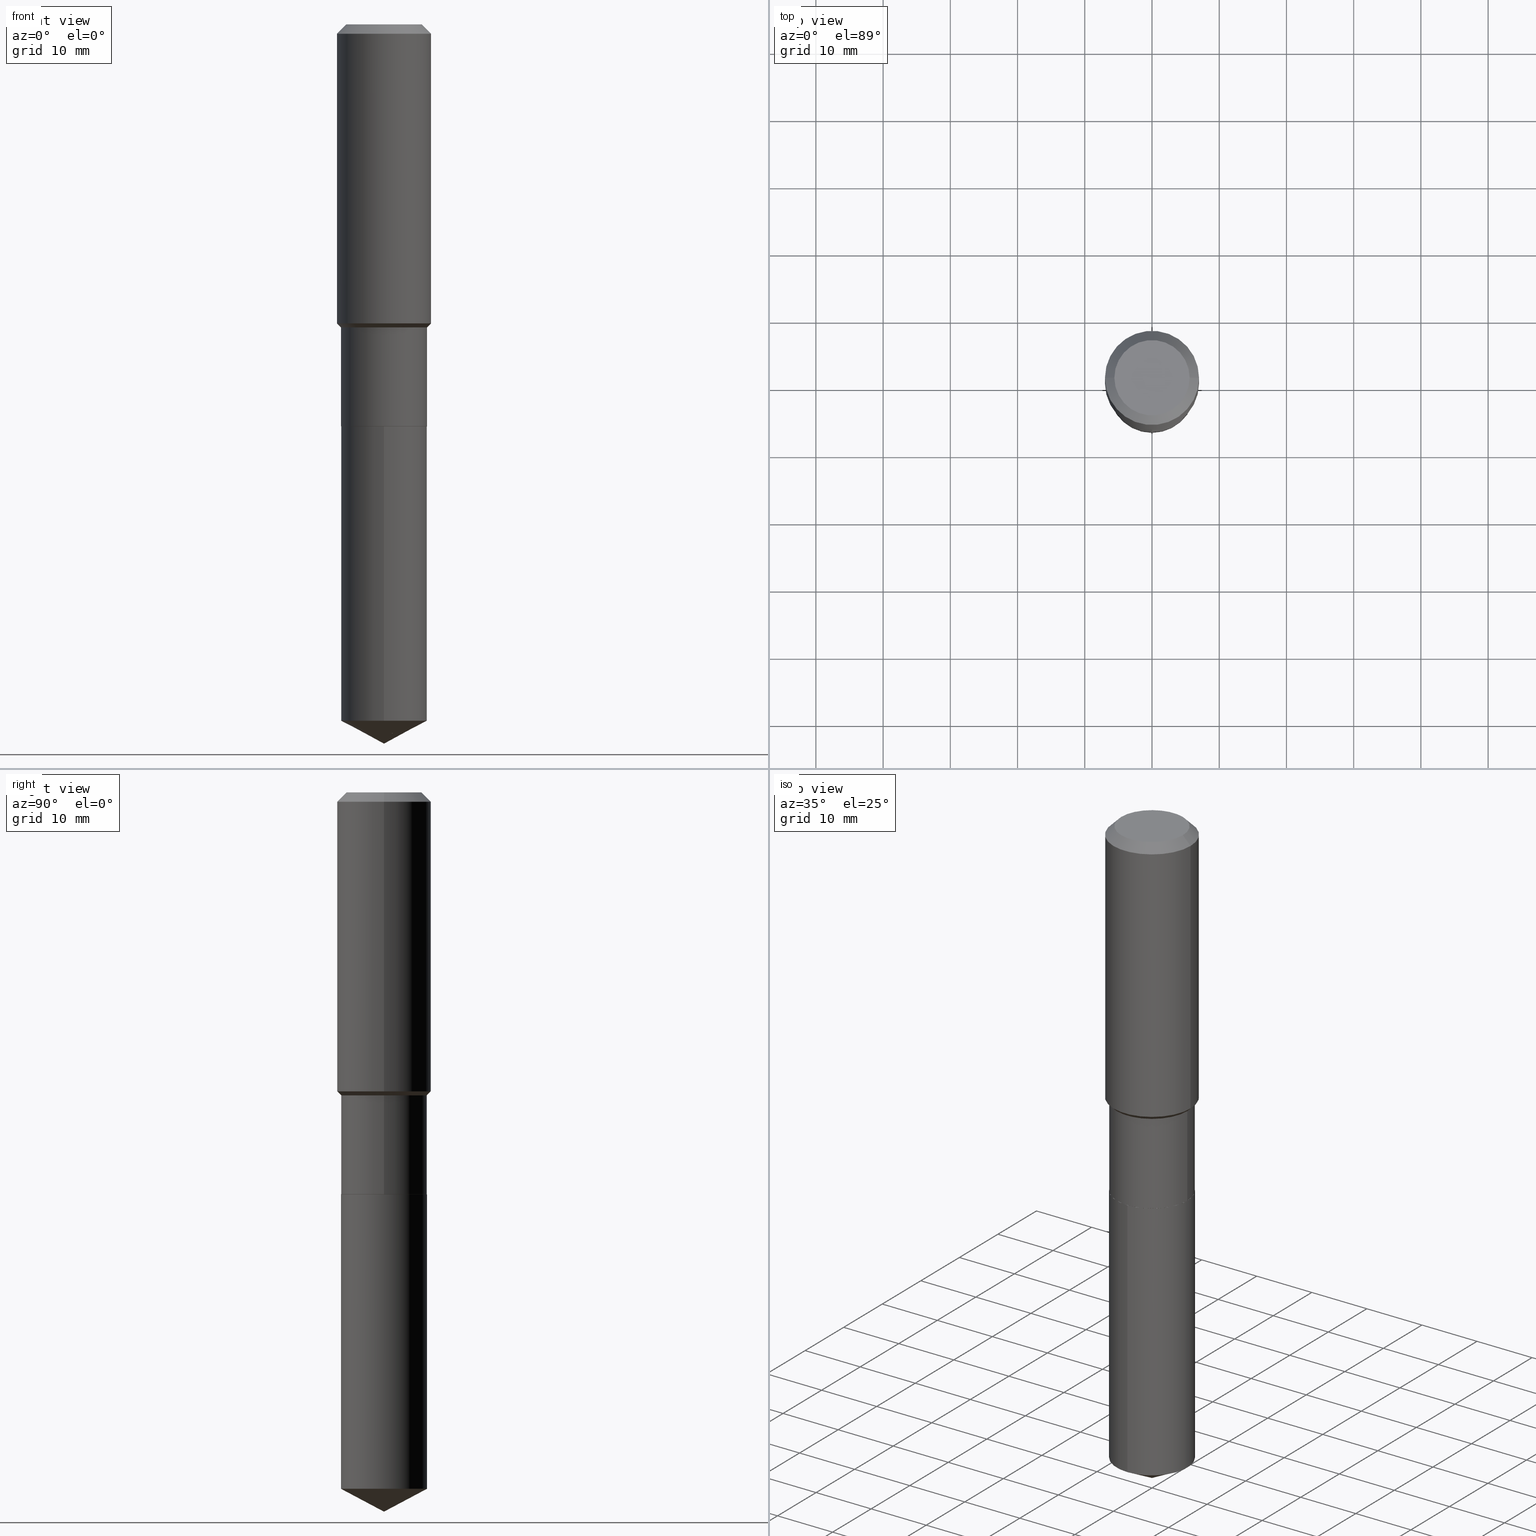
[diagram: canonical four-view strip — front | top / right | iso, engineering-drawing reading convention]
A machine part, canonical four-view strip (front | top / right | iso — engineering-drawing reading convention). The complete STEP part file that produces these views, byte-faithful:
ISO-10303-21;
HEADER;
FILE_DESCRIPTION (( 'STEP AP203' ),
    '1' );
FILE_NAME ('67692.STEP',
    '2024-04-25T09:34:52',
    ( '' ),
    ( '' ),
    'SwSTEP 2.0',
    'SolidWorks 2023',
    '' );
FILE_SCHEMA (( 'CONFIG_CONTROL_DESIGN' ));
ENDSEC;

DATA;
#1 = CARTESIAN_POINT ( 'NONE',  ( 0.000000000000000000, 0.000000000000000000, 0.000000000000000000 ) ) ;
#2 = EDGE_LOOP ( 'NONE', ( #100, #408, #293 ) ) ;
#3 = AXIS2_PLACEMENT_3D ( 'NONE', #363, #351, #164 ) ;
#4 = PERSON_AND_ORGANIZATION ( #196, #98 ) ;
#5 = EDGE_CURVE ( 'NONE', #39, #18, #113, .T. ) ;
#6 = APPLICATION_PROTOCOL_DEFINITION ( 'international standard', 'config_control_design', 1994, #73 ) ;
#7 = DIRECTION ( 'NONE',  ( 1.000000000000000000, -6.982962677686266711E-15, 4.876132675269083677E-29 ) ) ;
#8 = DIRECTION ( 'NONE',  ( -2.445468806185136597E-29, 3.491481338843145583E-15, 1.000000000000000000 ) ) ;
#9 = VECTOR ( 'NONE', #23, 39.37007874015748143 ) ;
#10 = DATE_AND_TIME ( #455, #419 ) ;
#11 = DIRECTION ( 'NONE',  ( -6.982962677686265922E-15, -1.000000000000000000, 4.337127197720600657E-15 ) ) ;
#12 = CIRCLE ( 'NONE', #223, 0.2519499999999999518 ) ;
#13 = CARTESIAN_POINT ( 'NONE',  ( -0.2519499999999999518, -4.406468657431244300E-15, -1.774800000000000155 ) ) ;
#14 = ORIENTED_EDGE ( 'NONE', *, *, #274, .T. ) ;
#15 = ORIENTED_EDGE ( 'NONE', *, *, #252, .T. ) ;
#16 = ADVANCED_FACE ( 'NONE', ( #112 ), #178, .F. ) ;
#17 = DIRECTION ( 'NONE',  ( -2.445468806185136597E-29, 3.491481338843145583E-15, 1.000000000000000000 ) ) ;
#18 = VERTEX_POINT ( 'NONE', #71 ) ;
#19 = DIRECTION ( 'NONE',  ( -6.982962677686265922E-15, -1.000000000000000000, 3.252845398290450098E-15 ) ) ;
#20 = FACE_OUTER_BOUND ( 'NONE', #202, .T. ) ;
#21 = ORIENTED_EDGE ( 'NONE', *, *, #323, .T. ) ;
#22 = AXIS2_PLACEMENT_3D ( 'NONE', #441, #180, #185 ) ;
#23 = DIRECTION ( 'NONE',  ( -2.445468806185136877E-29, 3.491481338843145188E-15, 1.000000000000000000 ) ) ;
#24 = VERTEX_POINT ( 'NONE', #347 ) ;
#25 = EDGE_CURVE ( 'NONE', #303, #141, #380, .T. ) ;
#26 = FACE_OUTER_BOUND ( 'NONE', #387, .T. ) ;
#27 = APPROVAL_DATE_TIME ( #233, #354 ) ;
#28 = DIRECTION ( 'NONE',  ( -6.982962677686265922E-15, -1.000000000000000000, 4.337127197720600657E-15 ) ) ;
#29 = CARTESIAN_POINT ( 'NONE',  ( 1.030198585258308093E-28, -1.470794465170432183E-14, -4.212600000000000122 ) ) ;
#30 = CARTESIAN_POINT ( 'NONE',  ( 4.282382699951101703E-29, -6.114107546515174524E-15, -1.751149999999999984 ) ) ;
#31 = ADVANCED_FACE ( 'NONE', ( #190 ), #237, .T. ) ;
#32 = AXIS2_PLACEMENT_3D ( 'NONE', #99, #244, #393 ) ;
#33 = PERSON_AND_ORGANIZATION_ROLE ( 'creator' ) ;
#34 = ORIENTED_EDGE ( 'NONE', *, *, #323, .F. ) ;
#35 = DIRECTION ( 'NONE',  ( -6.982962677686265922E-15, -1.000000000000000000, 3.252845398290450098E-15 ) ) ;
#36 = ORIENTED_EDGE ( 'NONE', *, *, #5, .F. ) ;
#37 = VECTOR ( 'NONE', #308, 39.37007874015748143 ) ;
#38 = AXIS2_PLACEMENT_3D ( 'NONE', #81, #227, #377 ) ;
#39 = VERTEX_POINT ( 'NONE', #91 ) ;
#40 = PERSON_AND_ORGANIZATION ( #196, #98 ) ;
#41 = ADVANCED_FACE ( 'NONE', ( #26 ), #435, .T. ) ;
#42 = DIRECTION ( 'NONE',  ( 1.000000000000000000, -6.982962677686265922E-15, 0.000000000000000000 ) ) ;
#43 = APPROVAL_ROLE ( '' ) ;
#44 = DIRECTION ( 'NONE',  ( -2.445468806185136597E-29, 3.491481338843145583E-15, 1.000000000000000000 ) ) ;
#45 = EDGE_CURVE ( 'NONE', #472, #303, #278, .T. ) ;
#46 = LOCAL_TIME ( 5, 34, 52.00000000000000000, #110 ) ;
#47 = DIRECTION ( 'NONE',  ( -2.445089197261036539E-29, 3.492024960428454996E-15, 1.000000000000000000 ) ) ;
#48 = FACE_OUTER_BOUND ( 'NONE', #127, .T. ) ;
#49 = ORIENTED_EDGE ( 'NONE', *, *, #334, .T. ) ;
#50 = DIRECTION ( 'NONE',  ( -1.000000000000000000, 6.982962677686269077E-15, 0.000000000000000000 ) ) ;
#51 = AXIS2_PLACEMENT_3D ( 'NONE', #231, #89, #116 ) ;
#52 = DIRECTION ( 'NONE',  ( -2.445468806185136597E-29, 3.491481338843145583E-15, 1.000000000000000000 ) ) ;
#53 = EDGE_LOOP ( 'NONE', ( #109, #462, #228, #361 ) ) ;
#54 = CONICAL_SURFACE ( 'NONE', #410, 0.2519499999999999518, 0.7853981633974511656 ) ;
#55 = ADVANCED_FACE ( 'NONE', ( #350 ), #107, .F. ) ;
#56 = DIRECTION ( 'NONE',  ( -2.445468806185136877E-29, 3.491481338843145188E-15, 1.000000000000000000 ) ) ;
#57 = CARTESIAN_POINT ( 'NONE',  ( 1.790212422747629662E-15, 0.2519499999999917361, -2.354300000000001170 ) ) ;
#58 = ORIENTED_EDGE ( 'NONE', *, *, #313, .T. ) ;
#59 = VERTEX_POINT ( 'NONE', #438 ) ;
#60 = LINE ( 'NONE', #357, #9 ) ;
#61 = CARTESIAN_POINT ( 'NONE',  ( 1.030018275238184418E-28, -1.471050434830091067E-14, -4.212600000000000122 ) ) ;
#62 = VERTEX_POINT ( 'NONE', #174 ) ;
#63 = EDGE_CURVE ( 'NONE', #472, #59, #106, .T. ) ;
#64 = CC_DESIGN_SECURITY_CLASSIFICATION ( #259, ( #365 ) ) ;
#65 = CARTESIAN_POINT ( 'NONE',  ( 5.757367210401669319E-29, -8.219994516038420659E-15, -2.354300000000000725 ) ) ;
#66 = ORIENTED_EDGE ( 'NONE', *, *, #440, .F. ) ;
#67 = DIRECTION ( 'NONE',  ( -2.445089197261036539E-29, 3.492024960428454996E-15, 1.000000000000000000 ) ) ;
#68 = APPROVAL ( #309, 'UNSPECIFIED' ) ;
#69 = AXIS2_PLACEMENT_3D ( 'NONE', #263, #403, #84 ) ;
#70 =( CONVERSION_BASED_UNIT ( 'INCH', #371 ) LENGTH_UNIT ( ) NAMED_UNIT ( #270 ) );
#71 = CARTESIAN_POINT ( 'NONE',  ( 1.790212422747671867E-15, 0.2519499999999857409, -4.078635808692893328 ) ) ;
#72 = DIRECTION ( 'NONE',  ( 2.445089197261035978E-29, -3.492024960428455391E-15, -1.000000000000000000 ) ) ;
#73 = APPLICATION_CONTEXT ( 'configuration controlled 3d designs of mechanical parts and assemblies' ) ;
#74 = PERSON_AND_ORGANIZATION ( #196, #98 ) ;
#75 = DIRECTION ( 'NONE',  ( 1.000000000000000000, 0.000000000000000000, 0.000000000000000000 ) ) ;
#76 =( NAMED_UNIT ( * ) PLANE_ANGLE_UNIT ( ) SI_UNIT ( $, .RADIAN. ) );
#77 = EDGE_LOOP ( 'NONE', ( #34, #336, #470, #302 ) ) ;
#78 = EDGE_CURVE ( 'NONE', #18, #261, #345, .T. ) ;
#79 = DIRECTION ( 'NONE',  ( 1.000000000000000000, -6.982962677686263555E-15, 0.000000000000000000 ) ) ;
#80 = VECTOR ( 'NONE', #417, 39.37007874015748143 ) ;
#81 = CARTESIAN_POINT ( 'NONE',  ( -8.596227775720360150E-28, 1.227720731546609541E-13, 35.15747874015747954 ) ) ;
#82 = CARTESIAN_POINT ( 'NONE',  ( -0.2204800000000000093, 1.635828836874783961E-15, 3.860086710901350968E-18 ) ) ;
#83 = FACE_OUTER_BOUND ( 'NONE', #53, .T. ) ;
#84 = DIRECTION ( 'NONE',  ( 1.000000000000000000, -6.982962677686265922E-15, 4.876176775795935793E-29 ) ) ;
#85 = DIRECTION ( 'NONE',  ( -2.445468806185136597E-29, 3.491481338843145583E-15, 1.000000000000000000 ) ) ;
#86 = ADVANCED_FACE ( 'NONE', ( #320 ), #306, .T. ) ;
#87 = DIRECTION ( 'NONE',  ( -0.7071067811865453523, 2.468850131082234184E-15, -0.7071067811865496822 ) ) ;
#88 = APPLICATION_PROTOCOL_DEFINITION ( 'international standard', 'config_control_design', 1994, #101 ) ;
#89 = DIRECTION ( 'NONE',  ( -2.445468806185136597E-29, 3.491481338843145583E-15, 1.000000000000000000 ) ) ;
#90 = CIRCLE ( 'NONE', #203, 0.2514500000000000068 ) ;
#91 = CARTESIAN_POINT ( 'NONE',  ( 1.030018275238184418E-28, -1.471050434830091067E-14, -4.212600000000000122 ) ) ;
#92 = EDGE_CURVE ( 'NONE', #299, #141, #157, .T. ) ;
#93 = CARTESIAN_POINT ( 'NONE',  ( -0.2514500000000000068, -6.430685579795536309E-15, -2.354300000000000725 ) ) ;
#94 = ORIENTED_EDGE ( 'NONE', *, *, #372, .T. ) ;
#95 = CIRCLE ( 'NONE', #297, 0.2204800000000000093 ) ;
#96 = DIRECTION ( 'NONE',  ( 1.000000000000000000, -6.982962677686263555E-15, 0.000000000000000000 ) ) ;
#97 = ORIENTED_EDGE ( 'NONE', *, *, #301, .T. ) ;
#98 = ORGANIZATION ( 'UNSPECIFIED', 'UNSPECIFIED', '' ) ;
#99 = CARTESIAN_POINT ( 'NONE',  ( 1.347942405969256063E-30, -1.924504513970354330E-16, -0.05512000000000035621 ) ) ;
#100 = ORIENTED_EDGE ( 'NONE', *, *, #400, .F. ) ;
#101 = APPLICATION_CONTEXT ( 'configuration controlled 3d designs of mechanical parts and assemblies' ) ;
#102 = LINE ( 'NONE', #13, #179 ) ;
#103 = CARTESIAN_POINT ( 'NONE',  ( 0.000000000000000000, 0.000000000000000000, 0.000000000000000000 ) ) ;
#104 = DIRECTION ( 'NONE',  ( -2.445468806185136597E-29, 3.491481338843145583E-15, 1.000000000000000000 ) ) ;
#105 = DIRECTION ( 'NONE',  ( 1.000000000000000000, -6.982962677686267499E-15, 4.876176775795935793E-29 ) ) ;
#106 = CIRCLE ( 'NONE', #444, 0.2756000000000002337 ) ;
#107 = PLANE ( 'NONE',  #473 ) ;
#108 = DATE_AND_TIME ( #207, #46 ) ;
#109 = ORIENTED_EDGE ( 'NONE', *, *, #176, .T. ) ;
#110 = COORDINATED_UNIVERSAL_TIME_OFFSET ( 5, 0, .BEHIND. ) ;
#111 = APPROVAL ( #204, 'UNSPECIFIED' ) ;
#112 = FACE_OUTER_BOUND ( 'NONE', #268, .T. ) ;
#113 = LINE ( 'NONE', #29, #396 ) ;
#114 = CC_DESIGN_APPROVAL ( #68, ( #259 ) ) ;
#115 = EDGE_CURVE ( 'NONE', #446, #303, #340, .T. ) ;
#116 = DIRECTION ( 'NONE',  ( 1.000000000000000000, -6.982962677686265922E-15, 0.000000000000000000 ) ) ;
#117 = ORIENTED_EDGE ( 'NONE', *, *, #257, .F. ) ;
#118 = CARTESIAN_POINT ( 'NONE',  ( -0.2756000000000001227, 1.958255779754836984E-15, -1.355658510874252567E-29 ) ) ;
#119 = AXIS2_PLACEMENT_3D ( 'NONE', #436, #104, #312 ) ;
#120 = CONICAL_SURFACE ( 'NONE', #3, 74.04434902938382379, 1.082104136236488046 ) ;
#121 = ORIENTED_EDGE ( 'NONE', *, *, #78, .F. ) ;
#122 = EDGE_CURVE ( 'NONE', #254, #465, #60, .T. ) ;
#123 = CARTESIAN_POINT ( 'NONE',  ( 5.757367210401669319E-29, -8.219994516038420659E-15, -2.354300000000000725 ) ) ;
#124 = CARTESIAN_POINT ( 'NONE',  ( -9.439721640706190018E-47, 1.347742071746724849E-32, 3.860086710912454339E-18 ) ) ;
#125 = DIRECTION ( 'NONE',  ( -2.445468806185136597E-29, 3.491481338843145583E-15, 1.000000000000000000 ) ) ;
#126 = COORDINATED_UNIVERSAL_TIME_OFFSET ( 5, 0, .BEHIND. ) ;
#127 = EDGE_LOOP ( 'NONE', ( #218, #437, #288, #286 ) ) ;
#128 = EDGE_CURVE ( 'NONE', #24, #315, #194, .T. ) ;
#129 = COORDINATED_UNIVERSAL_TIME_OFFSET ( 5, 0, .BEHIND. ) ;
#130 = DATE_AND_TIME ( #220, #186 ) ;
#131 = CARTESIAN_POINT ( 'NONE',  ( 0.2519499999999999518, -7.956038526821870387E-15, -1.774800000000000155 ) ) ;
#132 = CARTESIAN_POINT ( 'NONE',  ( 5.756144475998575397E-29, -8.218248775368998366E-15, -2.353800000000000558 ) ) ;
#133 = DIRECTION ( 'NONE',  ( -2.445468806185136597E-29, 3.491481338843145583E-15, 1.000000000000000000 ) ) ;
#134 = APPROVAL_ROLE ( '' ) ;
#135 = VECTOR ( 'NONE', #333, 39.37007874015748143 ) ;
#136 = DIRECTION ( 'NONE',  ( 0.7071067811865495711, -2.468850131082277965E-15, 0.7071067811865454633 ) ) ;
#137 = ORIENTED_EDGE ( 'NONE', *, *, #115, .F. ) ;
#138 = PRODUCT_DEFINITION ( 'UNKNOWN', '', #365, #221 ) ;
#139 = AXIS2_PLACEMENT_3D ( 'NONE', #1, #407, #232 ) ;
#140 = CARTESIAN_POINT ( 'NONE',  ( 0.000000000000000000, 0.000000000000000000, 0.000000000000000000 ) ) ;
#141 = VERTEX_POINT ( 'NONE', #169 ) ;
#142 = PRODUCT ( '67692', '67692', '', ( #485 ) ) ;
#143 = CONICAL_SURFACE ( 'NONE', #409, 0.2756000000000000116, 0.7853981633974452814 ) ;
#144 = ORIENTED_EDGE ( 'NONE', *, *, #307, .F. ) ;
#145 = CONICAL_SURFACE ( 'NONE', #32, 0.2756000000000000116, 0.7853981633974452814 ) ;
#146 = EDGE_CURVE ( 'NONE', #446, #299, #95, .T. ) ;
#147 = ORIENTED_EDGE ( 'NONE', *, *, #313, .F. ) ;
#148 = ADVANCED_FACE ( 'NONE', ( #289 ), #482, .T. ) ;
#149 = AXIS2_PLACEMENT_3D ( 'NONE', #200, #160, #42 ) ;
#150 = CC_DESIGN_APPROVAL ( #354, ( #138 ) ) ;
#151 = APPROVAL_DATE_TIME ( #130, #111 ) ;
#152 = PERSON_AND_ORGANIZATION_ROLE ( 'design_owner' ) ;
#153 = CARTESIAN_POINT ( 'NONE',  ( -0.2514500000000000068, -6.433334806969648298E-15, -2.354300000000000725 ) ) ;
#154 = LOCAL_TIME ( 5, 34, 52.00000000000000000, #129 ) ;
#155 = CC_DESIGN_PERSON_AND_ORGANIZATION_ASSIGNMENT ( #399, #426, ( #365 ) ) ;
#156 = CARTESIAN_POINT ( 'NONE',  ( 0.2514500000000000068, -9.975860481342631268E-15, -2.354300000000000725 ) ) ;
#157 = LINE ( 'NONE', #487, #247 ) ;
#158 = PERSON_AND_ORGANIZATION ( #196, #98 ) ;
#159 = PERSON_AND_ORGANIZATION ( #196, #98 ) ;
#160 = DIRECTION ( 'NONE',  ( -2.445468806185136597E-29, 3.491481338843145583E-15, 1.000000000000000000 ) ) ;
#161 = EDGE_CURVE ( 'NONE', #299, #446, #292, .T. ) ;
#162 = AXIS2_PLACEMENT_3D ( 'NONE', #217, #67, #28 ) ;
#163 = AXIS2_PLACEMENT_3D ( 'NONE', #291, #17, #253 ) ;
#164 = DIRECTION ( 'NONE',  ( -6.982962677686264344E-15, -1.000000000000000000, 3.541896320645547064E-15 ) ) ;
#165 = ORIENTED_EDGE ( 'NONE', *, *, #364, .F. ) ;
#166 = EDGE_LOOP ( 'NONE', ( #36, #432, #121 ) ) ;
#167 = ADVANCED_FACE ( 'NONE', ( #48 ), #143, .T. ) ;
#168 = CYLINDRICAL_SURFACE ( 'NONE', #450, 0.2756000000000001227 ) ;
#169 = CARTESIAN_POINT ( 'NONE',  ( -0.2756000000000000116, -1.195023219201267736E-15, -0.05512000000000035621 ) ) ;
#170 = DIRECTION ( 'NONE',  ( 1.000000000000000000, -6.982962677686267499E-15, 0.000000000000000000 ) ) ;
#171 = VECTOR ( 'NONE', #56, 39.37007874015748143 ) ;
#172 = EDGE_LOOP ( 'NONE', ( #390, #375, #14, #296 ) ) ;
#173 = CIRCLE ( 'NONE', #484, 0.2514500000000000068 ) ;
#174 = CARTESIAN_POINT ( 'NONE',  ( 0.2514500000000000068, -9.975860481342631268E-15, -2.354300000000000725 ) ) ;
#175 = CARTESIAN_POINT ( 'NONE',  ( 5.757367210401668198E-29, -8.219994516038419081E-15, -2.354300000000000281 ) ) ;
#176 = EDGE_CURVE ( 'NONE', #254, #356, #429, .T. ) ;
#177 = AXIS2_PLACEMENT_3D ( 'NONE', #379, #44, #239 ) ;
#178 = PLANE ( 'NONE',  #69 ) ;
#179 = VECTOR ( 'NONE', #282, 39.37007874015748143 ) ;
#180 = DIRECTION ( 'NONE',  ( -2.445468806185136597E-29, 3.491481338843145583E-15, 1.000000000000000000 ) ) ;
#181 = EDGE_CURVE ( 'NONE', #356, #188, #192, .T. ) ;
#182 = CARTESIAN_POINT ( 'NONE',  ( 0.2756000000000002337, -8.038612060485511055E-15, -1.751149999999999984 ) ) ;
#183 = CARTESIAN_POINT ( 'NONE',  ( -1.759357446642997213E-15, -0.2519500000000082229, -2.354299999999999393 ) ) ;
#184 = CIRCLE ( 'NONE', #258, 0.2519499999999999518 ) ;
#185 = DIRECTION ( 'NONE',  ( 1.000000000000000000, -6.982962677686263555E-15, 0.000000000000000000 ) ) ;
#186 = LOCAL_TIME ( 5, 34, 52.00000000000000000, #126 ) ;
#187 = EDGE_LOOP ( 'NONE', ( #384, #490, #463, #349 ) ) ;
#188 = VERTEX_POINT ( 'NONE', #451 ) ;
#189 = DIRECTION ( 'NONE',  ( -2.445468806185136877E-29, 3.491481338843145188E-15, 1.000000000000000000 ) ) ;
#190 = FACE_OUTER_BOUND ( 'NONE', #77, .T. ) ;
#191 = CC_DESIGN_DATE_AND_TIME_ASSIGNMENT ( #108, #373, ( #138 ) ) ;
#192 = LINE ( 'NONE', #195, #80 ) ;
#193 = DIRECTION ( 'NONE',  ( 2.438088387897960049E-29, -3.491481338843145188E-15, -1.000000000000000000 ) ) ;
#194 = CIRCLE ( 'NONE', #238, 0.2519500000000000073 ) ;
#195 = CARTESIAN_POINT ( 'NONE',  ( -0.2519499999999999518, 1.790212422747572076E-15, -1.239325695989723260E-29 ) ) ;
#196 = PERSON ( 'UNSPECIFIED', 'UNSPECIFIED', 'UNSPECIFIED', ('UNSPECIFIED'), ('UNSPECIFIED'), ('UNSPECIFIED') ) ;
#197 = APPROVAL_PERSON_ORGANIZATION ( #40, #354, #213 ) ;
#198 = CARTESIAN_POINT ( 'NONE',  ( 4.340218037217380899E-29, -6.196681080178815981E-15, -1.774800000000000155 ) ) ;
#199 = EDGE_CURVE ( 'NONE', #391, #62, #90, .T. ) ;
#200 = CARTESIAN_POINT ( 'NONE',  ( 1.347942405969256063E-30, -1.924504513970354330E-16, -0.05512000000000035621 ) ) ;
#201 = CARTESIAN_POINT ( 'NONE',  ( 9.973522068687030357E-29, -1.424141820015458017E-14, -4.078635808692891551 ) ) ;
#202 = EDGE_LOOP ( 'NONE', ( #117, #427, #327, #242 ) ) ;
#203 = AXIS2_PLACEMENT_3D ( 'NONE', #123, #415, #454 ) ;
#204 = APPROVAL_STATUS ( 'not_yet_approved' ) ;
#205 = CALENDAR_DATE ( 2024, 25, 4 ) ;
#206 = EDGE_LOOP ( 'NONE', ( #343, #225 ) ) ;
#207 = CALENDAR_DATE ( 2024, 25, 4 ) ;
#208 = CC_DESIGN_PERSON_AND_ORGANIZATION_ASSIGNMENT ( #158, #236, ( #259 ) ) ;
#209 = DIRECTION ( 'NONE',  ( -2.445089197261036539E-29, 3.492024960428455391E-15, 1.000000000000000000 ) ) ;
#210 = PRODUCT_DEFINITION_SHAPE ( 'NONE', 'NONE',  #138 ) ;
#211 = DIRECTION ( 'NONE',  ( -2.445089197261036539E-29, 3.492024960428454996E-15, 1.000000000000000000 ) ) ;
#212 = DIRECTION ( 'NONE',  ( -6.165590087286839185E-15, -0.8829475928589269884, 0.4694715627858906393 ) ) ;
#213 = APPROVAL_ROLE ( '' ) ;
#214 = AXIS2_PLACEMENT_3D ( 'NONE', #132, #411, #339 ) ;
#215 = LOCAL_TIME ( 5, 34, 52.00000000000000000, #219 ) ;
#216 = LINE ( 'NONE', #57, #338 ) ;
#217 = CARTESIAN_POINT ( 'NONE',  ( 9.973522068687030357E-29, -1.424141820015458017E-14, -4.078635808692891551 ) ) ;
#218 = ORIENTED_EDGE ( 'NONE', *, *, #146, .F. ) ;
#219 = COORDINATED_UNIVERSAL_TIME_OFFSET ( 5, 0, .BEHIND. ) ;
#220 = CALENDAR_DATE ( 2024, 25, 4 ) ;
#221 = DESIGN_CONTEXT ( 'detailed design', #101, 'design' ) ;
#222 = CLOSED_SHELL ( 'NONE', ( #488, #471, #330, #31, #55 ) ) ;
#223 = AXIS2_PLACEMENT_3D ( 'NONE', #280, #423, #431 ) ;
#224 = EDGE_CURVE ( 'NONE', #59, #472, #388, .T. ) ;
#225 = ORIENTED_EDGE ( 'NONE', *, *, #146, .T. ) ;
#226 = MANIFOLD_SOLID_BREP ( 'Body-Move/Copy2[2]', #284 ) ;
#227 = DIRECTION ( 'NONE',  ( -2.445089197261036539E-29, 3.492024960428454996E-15, 1.000000000000000000 ) ) ;
#228 = ORIENTED_EDGE ( 'NONE', *, *, #272, .F. ) ;
#229 = CARTESIAN_POINT ( 'NONE',  ( -4.719860820353095009E-47, 6.738710358733624243E-33, 1.930043355456227170E-18 ) ) ;
#230 = ADVANCED_FACE ( 'NONE', ( #449 ), #305, .F. ) ;
#231 = CARTESIAN_POINT ( 'NONE',  ( 1.347942405969256063E-30, -1.924504513970354330E-16, -0.05512000000000035621 ) ) ;
#232 = DIRECTION ( 'NONE',  ( 1.000000000000000000, -6.982962677686267499E-15, 4.876176775795935793E-29 ) ) ;
#233 = DATE_AND_TIME ( #475, #215 ) ;
#234 = DIRECTION ( 'NONE',  ( 1.000000000000000000, -6.982962677686267499E-15, 0.000000000000000000 ) ) ;
#235 = LINE ( 'NONE', #153, #397 ) ;
#236 = PERSON_AND_ORGANIZATION_ROLE ( 'classification_officer' ) ;
#237 = CYLINDRICAL_SURFACE ( 'NONE', #481, 0.2519500000000000073 ) ;
#238 = AXIS2_PLACEMENT_3D ( 'NONE', #433, #211, #19 ) ;
#239 = DIRECTION ( 'NONE',  ( 1.000000000000000000, -6.982962677686267499E-15, 0.000000000000000000 ) ) ;
#240 = PERSON_AND_ORGANIZATION ( #196, #98 ) ;
#241 = DATE_AND_TIME ( #205, #154 ) ;
#242 = ORIENTED_EDGE ( 'NONE', *, *, #252, .F. ) ;
#243 = CARTESIAN_POINT ( 'NONE',  ( 1.347942405969256063E-30, -1.924504513970354330E-16, -0.05512000000000035621 ) ) ;
#244 = DIRECTION ( 'NONE',  ( 2.445468806185136597E-29, -3.491481338843145583E-15, -1.000000000000000000 ) ) ;
#245 = ORIENTED_EDGE ( 'NONE', *, *, #372, .F. ) ;
#246 = ORIENTED_EDGE ( 'NONE', *, *, #92, .T. ) ;
#247 = VECTOR ( 'NONE', #87, 39.37007874015748143 ) ;
#248 = SECURITY_CLASSIFICATION_LEVEL ( 'unclassified' ) ;
#249 = AXIS2_PLACEMENT_3D ( 'NONE', #65, #369, #79 ) ;
#250 = CARTESIAN_POINT ( 'NONE',  ( 1.790212422747672261E-15, 0.2519499999999917361, -2.354300000000001170 ) ) ;
#251 = ORIENTED_EDGE ( 'NONE', *, *, #272, .T. ) ;
#252 = EDGE_CURVE ( 'NONE', #141, #303, #358, .T. ) ;
#253 = DIRECTION ( 'NONE',  ( 1.000000000000000000, -6.982962677686269077E-15, 0.000000000000000000 ) ) ;
#254 = VERTEX_POINT ( 'NONE', #416 ) ;
#255 = PERSON_AND_ORGANIZATION ( #196, #98 ) ;
#256 = DIRECTION ( 'NONE',  ( 1.000000000000000000, -6.982962677686267499E-15, 4.876176775795935793E-29 ) ) ;
#257 = EDGE_CURVE ( 'NONE', #59, #141, #331, .T. ) ;
#258 = AXIS2_PLACEMENT_3D ( 'NONE', #198, #85, #234 ) ;
#259 = SECURITY_CLASSIFICATION ( '', '', #248 ) ;
#260 = DIRECTION ( 'NONE',  ( -2.445468806185136597E-29, 3.491481338843145583E-15, 1.000000000000000000 ) ) ;
#261 = VERTEX_POINT ( 'NONE', #412 ) ;
#262 = CC_DESIGN_PERSON_AND_ORGANIZATION_ASSIGNMENT ( #74, #152, ( #142 ) ) ;
#263 = CARTESIAN_POINT ( 'NONE',  ( 3.971264563627302430E-29, -1.077779516486871561E-14, -2.354300000000000725 ) ) ;
#264 = CARTESIAN_POINT ( 'NONE',  ( 0.2756000000000000116, -2.083203699582869812E-15, -0.05512000000000035621 ) ) ;
#265 =( LENGTH_UNIT ( ) NAMED_UNIT ( * ) SI_UNIT ( $, .METRE. ) );
#266 = CIRCLE ( 'NONE', #163, 0.2519500000000000073 ) ;
#267 = DIRECTION ( 'NONE',  ( -6.982962677686265922E-15, -1.000000000000000000, 3.252845398290450098E-15 ) ) ;
#268 = EDGE_LOOP ( 'NONE', ( #147, #394 ) ) ;
#269 = ORIENTED_EDGE ( 'NONE', *, *, #176, .F. ) ;
#270 = DIMENSIONAL_EXPONENTS ( 1.000000000000000000, 0.000000000000000000, 0.000000000000000000, 0.000000000000000000, 0.000000000000000000, 0.000000000000000000, 0.000000000000000000 ) ;
#271 = FACE_OUTER_BOUND ( 'NONE', #2, .T. ) ;
#272 = EDGE_CURVE ( 'NONE', #465, #188, #184, .T. ) ;
#273 = APPROVAL_STATUS ( 'not_yet_approved' ) ;
#274 = EDGE_CURVE ( 'NONE', #62, #254, #378, .T. ) ;
#275 = APPROVAL_DATE_TIME ( #10, #68 ) ;
#276 = AXIS2_PLACEMENT_3D ( 'NONE', #229, #193, #383 ) ;
#277 = CIRCLE ( 'NONE', #439, 0.2519500000000000073 ) ;
#278 = LINE ( 'NONE', #425, #171 ) ;
#279 = DATE_TIME_ROLE ( 'classification_date' ) ;
#280 = CARTESIAN_POINT ( 'NONE',  ( 4.340218037217380899E-29, -6.196681080178815981E-15, -1.774800000000000155 ) ) ;
#281 = EDGE_CURVE ( 'NONE', #315, #24, #322, .T. ) ;
#282 = DIRECTION ( 'NONE',  ( -0.7071067811865495711, 7.493145998870362049E-15, 0.7071067811865454633 ) ) ;
#283 = ORIENTED_EDGE ( 'NONE', *, *, #281, .T. ) ;
#284 = CLOSED_SHELL ( 'NONE', ( #420, #167, #344, #290, #456, #41, #148, #413, #392, #230, #16, #86 ) ) ;
#285 = LINE ( 'NONE', #131, #445 ) ;
#286 = ORIENTED_EDGE ( 'NONE', *, *, #92, .F. ) ;
#287 = DIRECTION ( 'NONE',  ( -2.445468806185136597E-29, 3.491481338843145583E-15, 1.000000000000000000 ) ) ;
#288 = ORIENTED_EDGE ( 'NONE', *, *, #25, .T. ) ;
#289 = FACE_OUTER_BOUND ( 'NONE', #476, .T. ) ;
#290 = ADVANCED_FACE ( 'NONE', ( #325 ), #54, .T. ) ;
#291 = CARTESIAN_POINT ( 'NONE',  ( 5.756144475998575397E-29, -8.218248775368998366E-15, -2.353800000000000558 ) ) ;
#292 = CIRCLE ( 'NONE', #466, 0.2204800000000000093 ) ;
#293 = ORIENTED_EDGE ( 'NONE', *, *, #294, .F. ) ;
#294 = EDGE_CURVE ( 'NONE', #261, #18, #277, .T. ) ;
#295 = EDGE_LOOP ( 'NONE', ( #453, #283 ) ) ;
#296 = ORIENTED_EDGE ( 'NONE', *, *, #334, .F. ) ;
#297 = AXIS2_PLACEMENT_3D ( 'NONE', #318, #469, #7 ) ;
#298 =( GEOMETRIC_REPRESENTATION_CONTEXT ( 3 ) GLOBAL_UNCERTAINTY_ASSIGNED_CONTEXT ( ( #300 ) ) GLOBAL_UNIT_ASSIGNED_CONTEXT ( ( #70, #76, #324 ) ) REPRESENTATION_CONTEXT ( 'NONE', 'WORKASPACE' ) );
#299 = VERTEX_POINT ( 'NONE', #82 ) ;
#300 = UNCERTAINTY_MEASURE_WITH_UNIT (LENGTH_MEASURE( 1.000000000000000082E-05 ), #70, 'distance_accuracy_value', 'NONE');
#301 = EDGE_CURVE ( 'NONE', #391, #356, #235, .T. ) ;
#302 = ORIENTED_EDGE ( 'NONE', *, *, #281, .F. ) ;
#303 = VERTEX_POINT ( 'NONE', #386 ) ;
#304 = ORIENTED_EDGE ( 'NONE', *, *, #122, .T. ) ;
#305 = PLANE ( 'NONE',  #276 ) ;
#306 = CONICAL_SURFACE ( 'NONE', #22, 0.2514500000000000068, 0.7853981633972775267 ) ;
#307 = EDGE_CURVE ( 'NONE', #188, #59, #102, .T. ) ;
#308 = DIRECTION ( 'NONE',  ( 0.7071067811864267805, -2.468850131080992517E-15, 0.7071067811866682540 ) ) ;
#309 = APPROVAL_STATUS ( 'not_yet_approved' ) ;
#310 = CC_DESIGN_DATE_AND_TIME_ASSIGNMENT ( #241, #279, ( #259 ) ) ;
#311 = AXIS2_PLACEMENT_3D ( 'NONE', #328, #402, #267 ) ;
#312 = DIRECTION ( 'NONE',  ( 1.000000000000000000, -6.982962677686267499E-15, 0.000000000000000000 ) ) ;
#313 = EDGE_CURVE ( 'NONE', #62, #391, #173, .T. ) ;
#314 = CARTESIAN_POINT ( 'NONE',  ( 0.000000000000000000, 0.000000000000000000, 0.000000000000000000 ) ) ;
#315 = VERTEX_POINT ( 'NONE', #250 ) ;
#316 = FACE_OUTER_BOUND ( 'NONE', #483, .T. ) ;
#317 = CC_DESIGN_PERSON_AND_ORGANIZATION_ASSIGNMENT ( #255, #374, ( #365 ) ) ;
#318 = CARTESIAN_POINT ( 'NONE',  ( -9.439721640706190018E-47, 1.347742071746724849E-32, 3.860086710912454339E-18 ) ) ;
#319 = ORIENTED_EDGE ( 'NONE', *, *, #63, .F. ) ;
#320 = FACE_OUTER_BOUND ( 'NONE', #172, .T. ) ;
#321 = CYLINDRICAL_SURFACE ( 'NONE', #311, 0.2519500000000000073 ) ;
#322 = CIRCLE ( 'NONE', #376, 0.2519500000000000073 ) ;
#323 = EDGE_CURVE ( 'NONE', #18, #315, #216, .T. ) ;
#324 =( NAMED_UNIT ( * ) SI_UNIT ( $, .STERADIAN. ) SOLID_ANGLE_UNIT ( ) );
#325 = FACE_OUTER_BOUND ( 'NONE', #367, .T. ) ;
#326 = CARTESIAN_POINT ( 'NONE',  ( 0.000000000000000000, 0.000000000000000000, 0.000000000000000000 ) ) ;
#327 = ORIENTED_EDGE ( 'NONE', *, *, #45, .T. ) ;
#328 = CARTESIAN_POINT ( 'NONE',  ( 5.757367210401668198E-29, -8.219994516038419081E-15, -2.354300000000000281 ) ) ;
#329 = AXIS2_PLACEMENT_3D ( 'NONE', #140, #287, #256 ) ;
#330 = ADVANCED_FACE ( 'NONE', ( #360 ), #120, .T. ) ;
#331 = LINE ( 'NONE', #118, #418 ) ;
#332 = CARTESIAN_POINT ( 'NONE',  ( 0.2204800000000000093, -1.797903149065768707E-15, 3.860086710924123164E-18 ) ) ;
#333 = DIRECTION ( 'NONE',  ( 0.7071067811865453523, -7.319954787623248157E-15, -0.7071067811865496822 ) ) ;
#334 = EDGE_CURVE ( 'NONE', #356, #254, #266, .T. ) ;
#335 = DIRECTION ( 'NONE',  ( -2.445089197261036539E-29, 3.492024960428455391E-15, 1.000000000000000000 ) ) ;
#336 = ORIENTED_EDGE ( 'NONE', *, *, #78, .T. ) ;
#337 = AXIS2_PLACEMENT_3D ( 'NONE', #103, #125, #362 ) ;
#338 = VECTOR ( 'NONE', #209, 39.37007874015748143 ) ;
#339 = DIRECTION ( 'NONE',  ( 1.000000000000000000, -6.982962677686269077E-15, 0.000000000000000000 ) ) ;
#340 = LINE ( 'NONE', #264, #135 ) ;
#341 = DIRECTION ( 'NONE',  ( -6.982962677686265922E-15, -1.000000000000000000, 3.252845398290450098E-15 ) ) ;
#342 = DIRECTION ( 'NONE',  ( -2.445089197261036539E-29, 3.492024960428454996E-15, 1.000000000000000000 ) ) ;
#343 = ORIENTED_EDGE ( 'NONE', *, *, #161, .T. ) ;
#344 = ADVANCED_FACE ( 'NONE', ( #434 ), #168, .T. ) ;
#345 = CIRCLE ( 'NONE', #162, 0.2519500000000000073 ) ;
#346 = APPROVAL_PERSON_ORGANIZATION ( #240, #111, #134 ) ;
#347 = CARTESIAN_POINT ( 'NONE',  ( -1.759357446642997213E-15, -0.2519500000000082229, -2.354299999999999393 ) ) ;
#348 = DIRECTION ( 'NONE',  ( 0.000000000000000000, 0.000000000000000000, 1.000000000000000000 ) ) ;
#349 = ORIENTED_EDGE ( 'NONE', *, *, #45, .F. ) ;
#350 = FACE_OUTER_BOUND ( 'NONE', #295, .T. ) ;
#351 = DIRECTION ( 'NONE',  ( -2.445089197261036539E-29, 3.492024960428454996E-15, 1.000000000000000000 ) ) ;
#352 = ORIENTED_EDGE ( 'NONE', *, *, #224, .F. ) ;
#353 = DIRECTION ( 'NONE',  ( -2.445468806185136597E-29, 3.491481338843145583E-15, 1.000000000000000000 ) ) ;
#354 = APPROVAL ( #273, 'UNSPECIFIED' ) ;
#355 = LINE ( 'NONE', #61, #467 ) ;
#356 = VERTEX_POINT ( 'NONE', #464 ) ;
#357 = CARTESIAN_POINT ( 'NONE',  ( 0.2519499999999999518, -1.759357446643054800E-15, 1.228552738661785732E-29 ) ) ;
#358 = CIRCLE ( 'NONE', #149, 0.2756000000000000116 ) ;
#359 = AXIS2_PLACEMENT_3D ( 'NONE', #326, #348, #75 ) ;
#360 = FACE_OUTER_BOUND ( 'NONE', #166, .T. ) ;
#361 = ORIENTED_EDGE ( 'NONE', *, *, #122, .F. ) ;
#362 = DIRECTION ( 'NONE',  ( 1.000000000000000000, -6.982962677686267499E-15, 4.876176775795935793E-29 ) ) ;
#363 = CARTESIAN_POINT ( 'NONE',  ( -8.596227775720360150E-28, 1.227720731546609541E-13, 35.15747874015747954 ) ) ;
#364 = EDGE_CURVE ( 'NONE', #465, #472, #285, .T. ) ;
#365 = PRODUCT_DEFINITION_FORMATION_WITH_SPECIFIED_SOURCE ( 'ANY', '', #142, .NOT_KNOWN. ) ;
#366 = FACE_OUTER_BOUND ( 'NONE', #460, .T. ) ;
#367 = EDGE_LOOP ( 'NONE', ( #251, #443, #319, #165 ) ) ;
#368 = DIRECTION ( 'NONE',  ( -2.445089197261036539E-29, 3.492024960428454996E-15, 1.000000000000000000 ) ) ;
#369 = DIRECTION ( 'NONE',  ( -2.445468806185136597E-29, 3.491481338843145583E-15, 1.000000000000000000 ) ) ;
#370 = MANIFOLD_SOLID_BREP ( 'Body-Move/Copy2[1]', #222 ) ;
#371 = LENGTH_MEASURE_WITH_UNIT ( LENGTH_MEASURE( 0.02539999999999999897 ), #265 );
#372 = EDGE_CURVE ( 'NONE', #188, #465, #12, .T. ) ;
#373 = DATE_TIME_ROLE ( 'creation_date' ) ;
#374 = PERSON_AND_ORGANIZATION_ROLE ( 'creator' ) ;
#375 = ORIENTED_EDGE ( 'NONE', *, *, #199, .T. ) ;
#376 = AXIS2_PLACEMENT_3D ( 'NONE', #452, #368, #35 ) ;
#377 = DIRECTION ( 'NONE',  ( -6.982962677686264344E-15, -1.000000000000000000, 3.541896320645547064E-15 ) ) ;
#378 = LINE ( 'NONE', #156, #37 ) ;
#379 = CARTESIAN_POINT ( 'NONE',  ( 4.282382699951101703E-29, -6.114107546515174524E-15, -1.751149999999999984 ) ) ;
#380 = CIRCLE ( 'NONE', #51, 0.2756000000000000116 ) ;
#381 = CONICAL_SURFACE ( 'NONE', #249, 0.2514500000000000068, 0.7853981633972775267 ) ;
#382 = CARTESIAN_POINT ( 'NONE',  ( 5.757367210401668198E-29, -8.219994516038419081E-15, -2.354300000000000281 ) ) ;
#383 = DIRECTION ( 'NONE',  ( -1.000000000000000000, 6.982962677686265922E-15, -4.876176775795935793E-29 ) ) ;
#384 = ORIENTED_EDGE ( 'NONE', *, *, #63, .T. ) ;
#385 = DIRECTION ( 'NONE',  ( 2.445468806185136597E-29, -3.491481338843145583E-15, -1.000000000000000000 ) ) ;
#386 = CARTESIAN_POINT ( 'NONE',  ( 0.2756000000000000116, -2.116954965367370658E-15, -0.05512000000000035621 ) ) ;
#387 = EDGE_LOOP ( 'NONE', ( #477, #49, #304, #245 ) ) ;
#388 = CIRCLE ( 'NONE', #177, 0.2756000000000002337 ) ;
#389 = CONICAL_SURFACE ( 'NONE', #38, 74.04434902938382379, 1.082104136236488046 ) ;
#390 = ORIENTED_EDGE ( 'NONE', *, *, #301, .F. ) ;
#391 = VERTEX_POINT ( 'NONE', #93 ) ;
#392 = ADVANCED_FACE ( 'NONE', ( #316 ), #145, .T. ) ;
#393 = DIRECTION ( 'NONE',  ( -1.000000000000000000, 6.982962677686269077E-15, 0.000000000000000000 ) ) ;
#394 = ORIENTED_EDGE ( 'NONE', *, *, #199, .F. ) ;
#395 = CARTESIAN_POINT ( 'NONE',  ( 5.757367210401669319E-29, -8.219994516038420659E-15, -2.354300000000000725 ) ) ;
#396 = VECTOR ( 'NONE', #404, 39.37007874015748143 ) ;
#397 = VECTOR ( 'NONE', #461, 39.37007874015748143 ) ;
#398 = DIRECTION ( 'NONE',  ( 1.000000000000000000, -6.982962677686267499E-15, 0.000000000000000000 ) ) ;
#399 = PERSON_AND_ORGANIZATION ( #196, #98 ) ;
#400 = EDGE_CURVE ( 'NONE', #39, #261, #355, .T. ) ;
#401 = ORIENTED_EDGE ( 'NONE', *, *, #294, .T. ) ;
#402 = DIRECTION ( 'NONE',  ( -2.445089197261036539E-29, 3.492024960428454996E-15, 1.000000000000000000 ) ) ;
#403 = DIRECTION ( 'NONE',  ( -2.438088387897960049E-29, 3.491481338843145188E-15, 1.000000000000000000 ) ) ;
#404 = DIRECTION ( 'NONE',  ( 6.273719981627770021E-15, 0.8829475928589302081, 0.4694715627858844220 ) ) ;
#405 = CC_DESIGN_PERSON_AND_ORGANIZATION_ASSIGNMENT ( #159, #33, ( #138 ) ) ;
#406 = LINE ( 'NONE', #183, #474 ) ;
#407 = DIRECTION ( 'NONE',  ( -2.445468806185136597E-29, 3.491481338843145583E-15, 1.000000000000000000 ) ) ;
#408 = ORIENTED_EDGE ( 'NONE', *, *, #5, .T. ) ;
#409 = AXIS2_PLACEMENT_3D ( 'NONE', #243, #385, #50 ) ;
#410 = AXIS2_PLACEMENT_3D ( 'NONE', #478, #353, #170 ) ;
#411 = DIRECTION ( 'NONE',  ( -2.445468806185136597E-29, 3.491481338843145583E-15, 1.000000000000000000 ) ) ;
#412 = CARTESIAN_POINT ( 'NONE',  ( -1.759357446642955206E-15, -0.2519500000000142181, -4.078635808692890663 ) ) ;
#413 = ADVANCED_FACE ( 'NONE', ( #20 ), #468, .T. ) ;
#414 = ORIENTED_EDGE ( 'NONE', *, *, #364, .T. ) ;
#415 = DIRECTION ( 'NONE',  ( -2.445468806185136597E-29, 3.491481338843145583E-15, 1.000000000000000000 ) ) ;
#416 = CARTESIAN_POINT ( 'NONE',  ( 0.2519500000000000073, -9.977606222012053561E-15, -2.353800000000000558 ) ) ;
#417 = DIRECTION ( 'NONE',  ( -2.445468806185136877E-29, 3.491481338843145188E-15, 1.000000000000000000 ) ) ;
#418 = VECTOR ( 'NONE', #189, 39.37007874015748143 ) ;
#419 = LOCAL_TIME ( 5, 34, 52.00000000000000000, #421 ) ;
#420 = ADVANCED_FACE ( 'NONE', ( #447 ), #381, .T. ) ;
#421 = COORDINATED_UNIVERSAL_TIME_OFFSET ( 5, 0, .BEHIND. ) ;
#422 = DIRECTION ( 'NONE',  ( 1.000000000000000000, -6.982962677686266711E-15, 4.876132675269083677E-29 ) ) ;
#423 = DIRECTION ( 'NONE',  ( -2.445468806185136597E-29, 3.491481338843145583E-15, 1.000000000000000000 ) ) ;
#424 = EDGE_LOOP ( 'NONE', ( #58, #97, #269, #442 ) ) ;
#425 = CARTESIAN_POINT ( 'NONE',  ( 0.2756000000000001227, -1.924504513970336137E-15, 1.343874319409360548E-29 ) ) ;
#426 = PERSON_AND_ORGANIZATION_ROLE ( 'design_supplier' ) ;
#427 = ORIENTED_EDGE ( 'NONE', *, *, #224, .T. ) ;
#428 = ORIENTED_EDGE ( 'NONE', *, *, #161, .F. ) ;
#429 = CIRCLE ( 'NONE', #214, 0.2519500000000000073 ) ;
#430 = APPROVAL_PERSON_ORGANIZATION ( #4, #68, #43 ) ;
#431 = DIRECTION ( 'NONE',  ( 1.000000000000000000, -6.982962677686267499E-15, 0.000000000000000000 ) ) ;
#432 = ORIENTED_EDGE ( 'NONE', *, *, #400, .T. ) ;
#433 = CARTESIAN_POINT ( 'NONE',  ( 5.757367210401668198E-29, -8.219994516038419081E-15, -2.354300000000000281 ) ) ;
#434 = FACE_OUTER_BOUND ( 'NONE', #187, .T. ) ;
#435 = CYLINDRICAL_SURFACE ( 'NONE', #337, 0.2519499999999999518 ) ;
#436 = CARTESIAN_POINT ( 'NONE',  ( 4.340218037217380899E-29, -6.196681080178815981E-15, -1.774800000000000155 ) ) ;
#437 = ORIENTED_EDGE ( 'NONE', *, *, #115, .T. ) ;
#438 = CARTESIAN_POINT ( 'NONE',  ( -0.2756000000000002337, -4.155851766760337145E-15, -1.751149999999999984 ) ) ;
#439 = AXIS2_PLACEMENT_3D ( 'NONE', #201, #342, #11 ) ;
#440 = EDGE_CURVE ( 'NONE', #261, #24, #406, .T. ) ;
#441 = CARTESIAN_POINT ( 'NONE',  ( 5.757367210401669319E-29, -8.219994516038420659E-15, -2.354300000000000725 ) ) ;
#442 = ORIENTED_EDGE ( 'NONE', *, *, #274, .F. ) ;
#443 = ORIENTED_EDGE ( 'NONE', *, *, #307, .T. ) ;
#444 = AXIS2_PLACEMENT_3D ( 'NONE', #30, #260, #398 ) ;
#445 = VECTOR ( 'NONE', #136, 39.37007874015748143 ) ;
#446 = VERTEX_POINT ( 'NONE', #332 ) ;
#447 = FACE_OUTER_BOUND ( 'NONE', #424, .T. ) ;
#448 = CARTESIAN_POINT ( 'NONE',  ( 0.2519499999999999518, -7.956038526821870387E-15, -1.774800000000000155 ) ) ;
#449 = FACE_OUTER_BOUND ( 'NONE', #206, .T. ) ;
#450 = AXIS2_PLACEMENT_3D ( 'NONE', #314, #52, #105 ) ;
#451 = CARTESIAN_POINT ( 'NONE',  ( -0.2519499999999999518, -5.417252505026335098E-15, -1.774800000000000155 ) ) ;
#452 = CARTESIAN_POINT ( 'NONE',  ( 5.757367210401668198E-29, -8.219994516038419081E-15, -2.354300000000000281 ) ) ;
#453 = ORIENTED_EDGE ( 'NONE', *, *, #128, .T. ) ;
#454 = DIRECTION ( 'NONE',  ( 1.000000000000000000, -6.982962677686263555E-15, 0.000000000000000000 ) ) ;
#455 = CALENDAR_DATE ( 2024, 25, 4 ) ;
#456 = ADVANCED_FACE ( 'NONE', ( #83 ), #489, .T. ) ;
#457 = ORIENTED_EDGE ( 'NONE', *, *, #128, .F. ) ;
#458 = CC_DESIGN_APPROVAL ( #111, ( #365 ) ) ;
#459 = SHAPE_DEFINITION_REPRESENTATION ( #210, #486 ) ;
#460 = EDGE_LOOP ( 'NONE', ( #401, #21, #457, #66 ) ) ;
#461 = DIRECTION ( 'NONE',  ( -0.7071067811864267805, 7.493145998869918709E-15, 0.7071067811866682540 ) ) ;
#462 = ORIENTED_EDGE ( 'NONE', *, *, #181, .T. ) ;
#463 = ORIENTED_EDGE ( 'NONE', *, *, #25, .F. ) ;
#464 = CARTESIAN_POINT ( 'NONE',  ( -0.2519500000000000073, -5.417252505026335098E-15, -2.353800000000000558 ) ) ;
#465 = VERTEX_POINT ( 'NONE', #448 ) ;
#466 = AXIS2_PLACEMENT_3D ( 'NONE', #124, #8, #422 ) ;
#467 = VECTOR ( 'NONE', #212, 39.37007874015748854 ) ;
#468 = CYLINDRICAL_SURFACE ( 'NONE', #329, 0.2756000000000001227 ) ;
#469 = DIRECTION ( 'NONE',  ( -2.445468806185136597E-29, 3.491481338843145583E-15, 1.000000000000000000 ) ) ;
#470 = ORIENTED_EDGE ( 'NONE', *, *, #440, .T. ) ;
#471 = ADVANCED_FACE ( 'NONE', ( #271 ), #389, .T. ) ;
#472 = VERTEX_POINT ( 'NONE', #182 ) ;
#473 = AXIS2_PLACEMENT_3D ( 'NONE', #175, #72, #480 ) ;
#474 = VECTOR ( 'NONE', #335, 39.37007874015748143 ) ;
#475 = CALENDAR_DATE ( 2024, 25, 4 ) ;
#476 = EDGE_LOOP ( 'NONE', ( #144, #94, #414, #352 ) ) ;
#477 = ORIENTED_EDGE ( 'NONE', *, *, #181, .F. ) ;
#478 = CARTESIAN_POINT ( 'NONE',  ( 4.340218037217380899E-29, -6.196681080178815981E-15, -1.774800000000000155 ) ) ;
#479 = PRODUCT_RELATED_PRODUCT_CATEGORY ( 'detail', '', ( #142 ) ) ;
#480 = DIRECTION ( 'NONE',  ( 6.982962677686265922E-15, 1.000000000000000000, -3.492024960428455391E-15 ) ) ;
#481 = AXIS2_PLACEMENT_3D ( 'NONE', #382, #47, #341 ) ;
#482 = CONICAL_SURFACE ( 'NONE', #119, 0.2519499999999999518, 0.7853981633974511656 ) ;
#483 = EDGE_LOOP ( 'NONE', ( #137, #428, #246, #15 ) ) ;
#484 = AXIS2_PLACEMENT_3D ( 'NONE', #395, #133, #96 ) ;
#485 = MECHANICAL_CONTEXT ( 'NONE', #73, 'mechanical' ) ;
#486 = ADVANCED_BREP_SHAPE_REPRESENTATION ( '67692', ( #370, #226, #359 ), #298 ) ;
#487 = CARTESIAN_POINT ( 'NONE',  ( -0.2756000000000000116, 1.732054062573300039E-15, -0.05512000000000035621 ) ) ;
#488 = ADVANCED_FACE ( 'NONE', ( #366 ), #321, .T. ) ;
#489 = CYLINDRICAL_SURFACE ( 'NONE', #139, 0.2519499999999999518 ) ;
#490 = ORIENTED_EDGE ( 'NONE', *, *, #257, .T. ) ;
ENDSEC;
END-ISO-10303-21;
